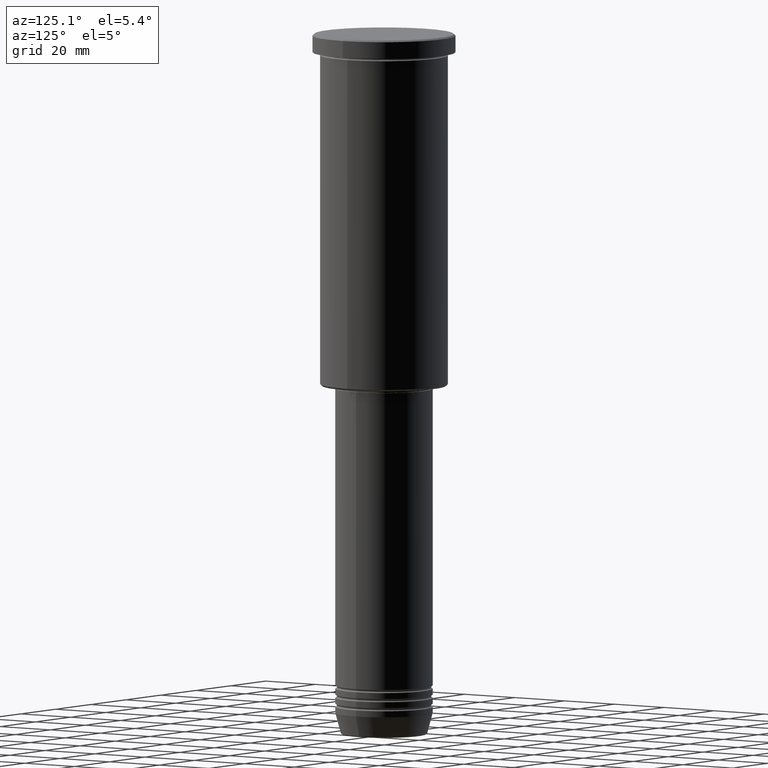
[diagram: clean part render]
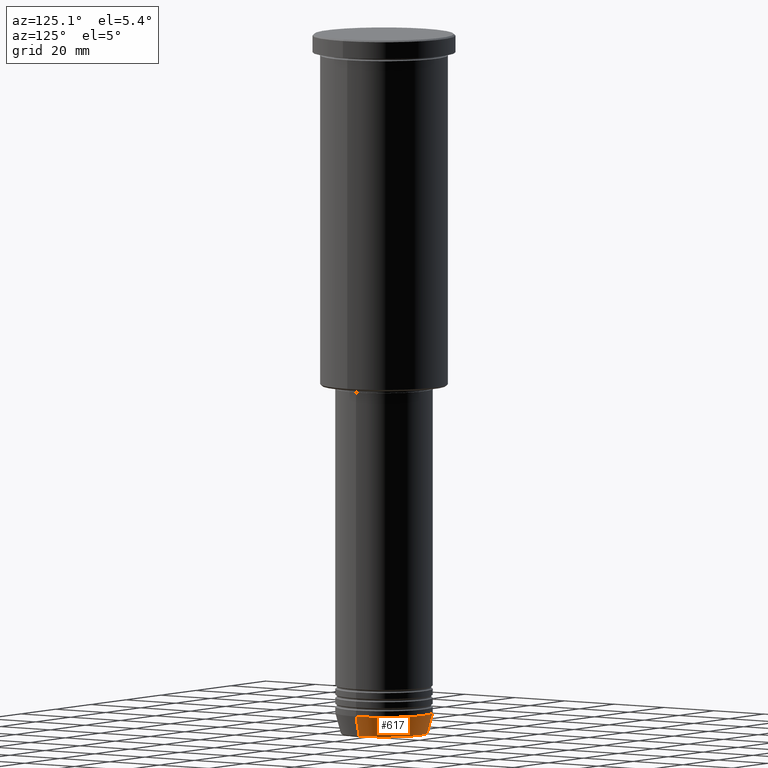
[diagram: same view with one face highlighted and labeled with its STEP entity id]
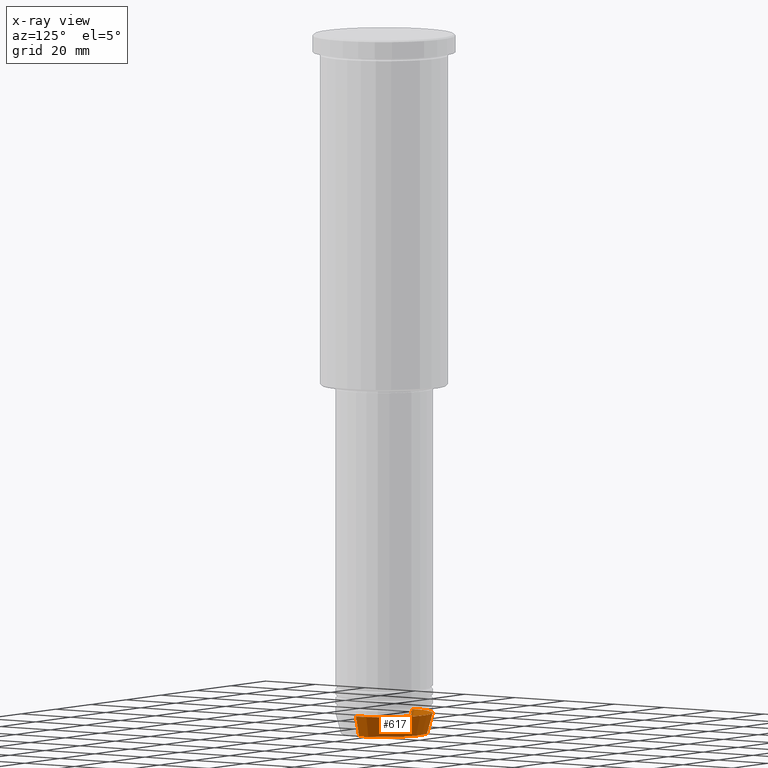
[diagram: x-ray of the same camera — body ghosted, the highlighted face saturated]
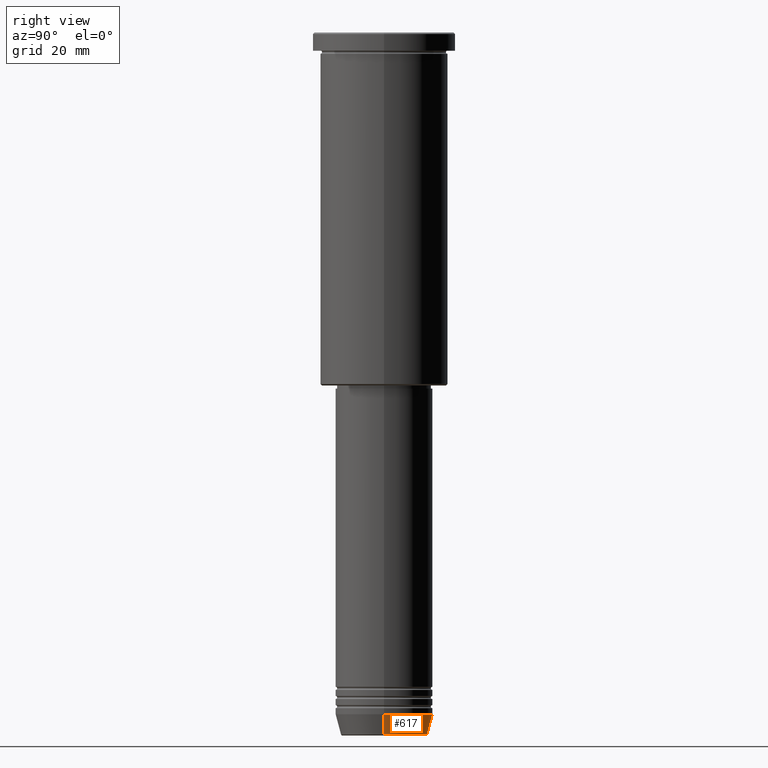
[diagram: same view with one face highlighted and labeled with its STEP entity id]
A machine part, auxiliary view. The second image highlights one B-rep face of the part: STEP entity #617.
The next image is the same camera in x-ray: the body ghosted, the highlighted face saturated — about 1% of this face is hidden behind the body in this view.
A second angle (right view) of the same face is appended — the face is thin or edge-on in the first view.
In plain terms, the highlighted conical surface has half-angle 15 deg.
Its self-contained STEP definition (entity closure, byte-faithful):
#12 = VERTEX_POINT ( 'NONE', #18 ) ;
#18 = CARTESIAN_POINT ( 'NONE',  ( 16.00000000000000000, 0.000000000000000000, -224.0000000000000000 ) ) ;
#20 = CARTESIAN_POINT ( 'NONE',  ( 0.000000000000000000, 0.000000000000000000, -224.0000000000000000 ) ) ;
#50 = DIRECTION ( 'NONE',  ( 0.2588190451025213501, 0.000000000000000000, 0.9659258262890680902 ) ) ;
#79 = EDGE_CURVE ( 'NONE', #115, #342, #787, .T. ) ;
#87 = CARTESIAN_POINT ( 'NONE',  ( -14.22365507213719660, 1.850665122131324126E-15, -230.6294095225512706 ) ) ;
#111 = AXIS2_PLACEMENT_3D ( 'NONE', #20, #778, #435 ) ;
#115 = VERTEX_POINT ( 'NONE', #87 ) ;
#142 = CARTESIAN_POINT ( 'NONE',  ( -16.00000000000000000, 1.959434878635765131E-15, -224.0000000000000000 ) ) ;
#179 = VERTEX_POINT ( 'NONE', #990 ) ;
#188 = EDGE_CURVE ( 'NONE', #12, #342, #1087, .T. ) ;
#243 = DIRECTION ( 'NONE',  ( -0.2588190451025213501, 3.169619151431772337E-17, 0.9659258262890680902 ) ) ;
#254 = ORIENTED_EDGE ( 'NONE', *, *, #79, .T. ) ;
#269 = DIRECTION ( 'NONE',  ( -0.000000000000000000, -0.000000000000000000, 1.000000000000000000 ) ) ;
#276 = CARTESIAN_POINT ( 'NONE',  ( 0.000000000000000000, 0.000000000000000000, -224.0000000000000000 ) ) ;
#285 = ORIENTED_EDGE ( 'NONE', *, *, #402, .F. ) ;
#303 = VECTOR ( 'NONE', #243, 1000.000000000000000 ) ;
#342 = VERTEX_POINT ( 'NONE', #142 ) ;
#402 = EDGE_CURVE ( 'NONE', #179, #12, #414, .T. ) ;
#414 = LINE ( 'NONE', #514, #1033 ) ;
#426 = FACE_OUTER_BOUND ( 'NONE', #1066, .T. ) ;
#435 = DIRECTION ( 'NONE',  ( 1.000000000000000000, 0.000000000000000000, 0.000000000000000000 ) ) ;
#514 = CARTESIAN_POINT ( 'NONE',  ( 16.00000000000000000, 0.000000000000000000, -224.0000000000000000 ) ) ;
#526 = EDGE_CURVE ( 'NONE', #179, #115, #1106, .T. ) ;
#600 = ORIENTED_EDGE ( 'NONE', *, *, #526, .T. ) ;
#617 = ADVANCED_FACE ( 'NONE', ( #426 ), #659, .T. ) ;
#630 = ORIENTED_EDGE ( 'NONE', *, *, #188, .F. ) ;
#659 = CONICAL_SURFACE ( 'NONE', #732, 16.00000000000000000, 0.2617993877991500740 ) ;
#732 = AXIS2_PLACEMENT_3D ( 'NONE', #276, #269, #749 ) ;
#749 = DIRECTION ( 'NONE',  ( 1.000000000000000000, 0.000000000000000000, 0.000000000000000000 ) ) ;
#778 = DIRECTION ( 'NONE',  ( -0.000000000000000000, -0.000000000000000000, 1.000000000000000000 ) ) ;
#787 = LINE ( 'NONE', #1146, #303 ) ;
#807 = DIRECTION ( 'NONE',  ( -0.000000000000000000, -0.000000000000000000, 1.000000000000000000 ) ) ;
#898 = DIRECTION ( 'NONE',  ( 1.000000000000000000, 0.000000000000000000, 0.000000000000000000 ) ) ;
#990 = CARTESIAN_POINT ( 'NONE',  ( 14.22365507213719660, 0.000000000000000000, -230.6294095225512706 ) ) ;
#993 = CARTESIAN_POINT ( 'NONE',  ( 0.000000000000000000, 0.000000000000000000, -230.6294095225512706 ) ) ;
#1017 = AXIS2_PLACEMENT_3D ( 'NONE', #993, #807, #898 ) ;
#1033 = VECTOR ( 'NONE', #50, 1000.000000000000000 ) ;
#1066 = EDGE_LOOP ( 'NONE', ( #600, #254, #630, #285 ) ) ;
#1087 = CIRCLE ( 'NONE', #111, 16.00000000000000000 ) ;
#1106 = CIRCLE ( 'NONE', #1017, 14.22365507213719660 ) ;
#1146 = CARTESIAN_POINT ( 'NONE',  ( -16.00000000000000000, 1.959434878635765131E-15, -224.0000000000000000 ) ) ;